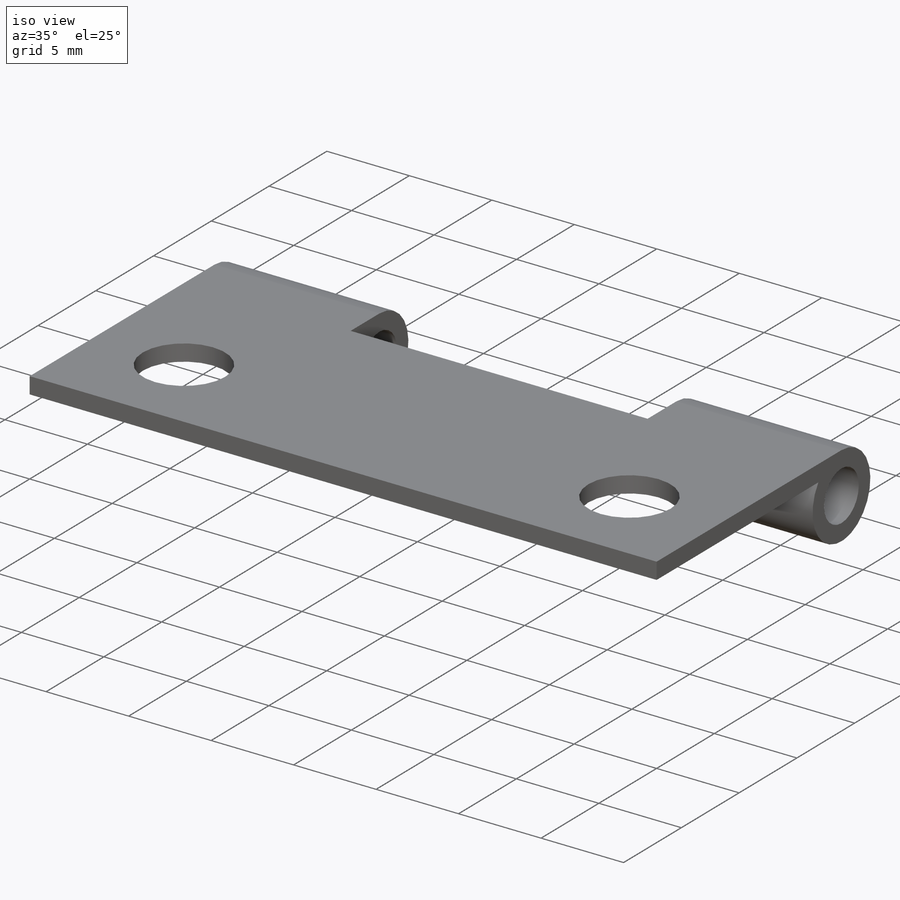
[diagram: iso view]
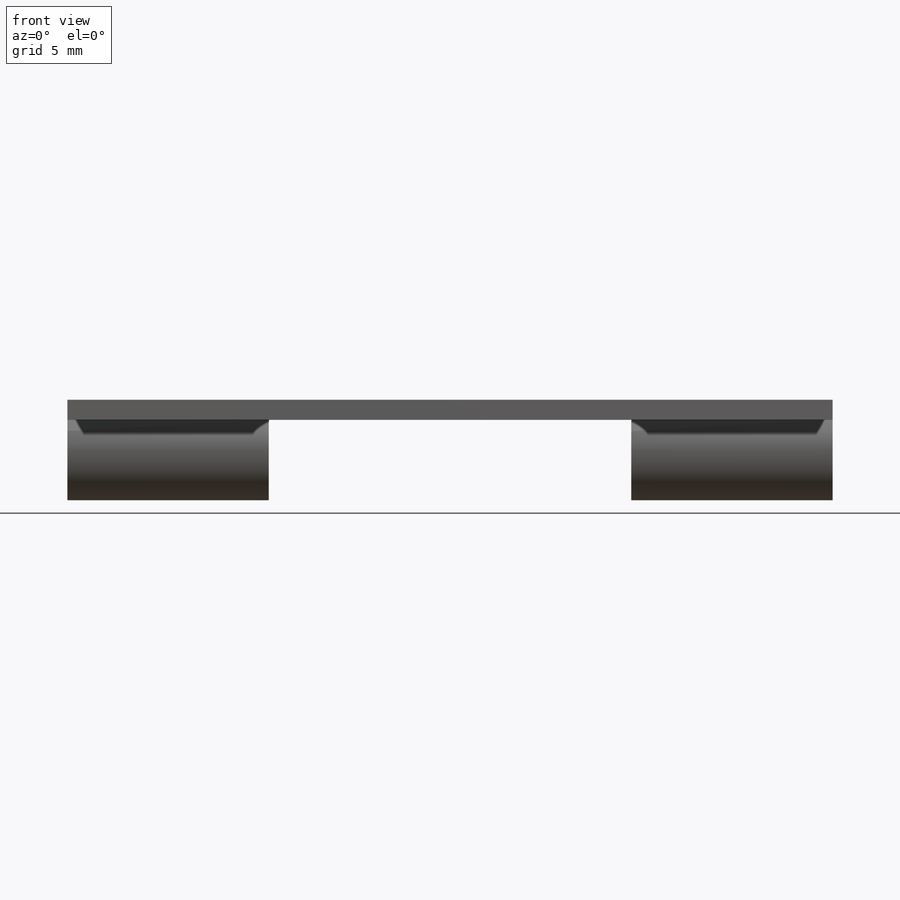
[diagram: front view]
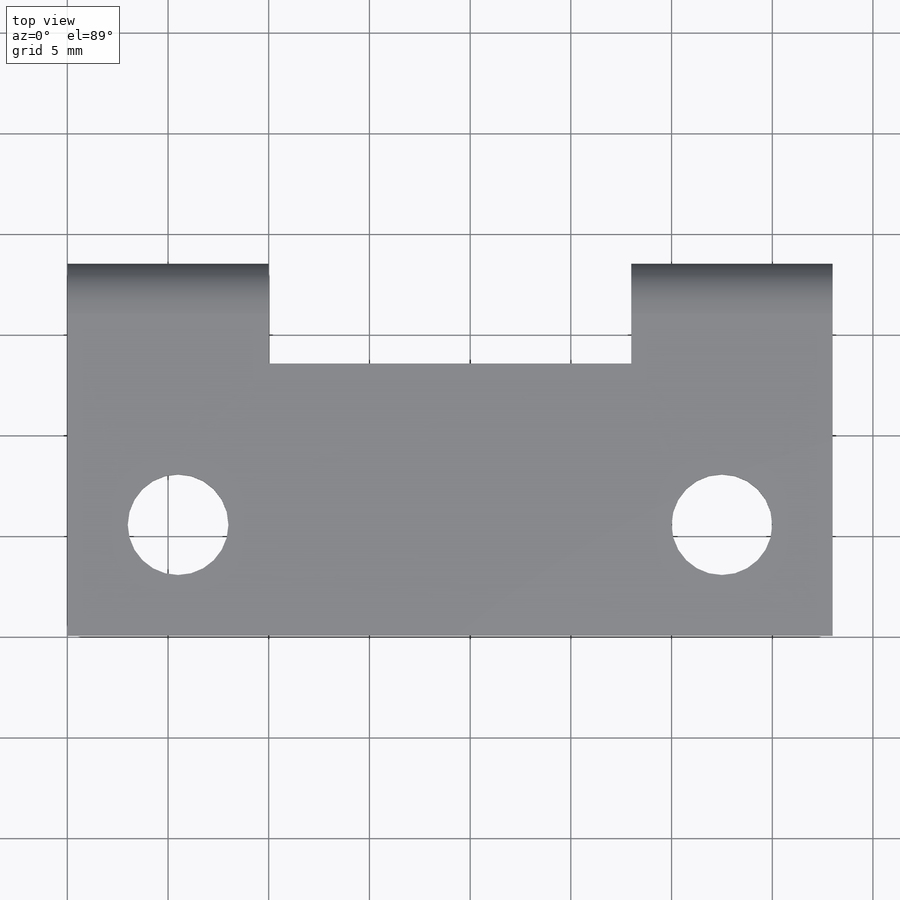
[diagram: top view]
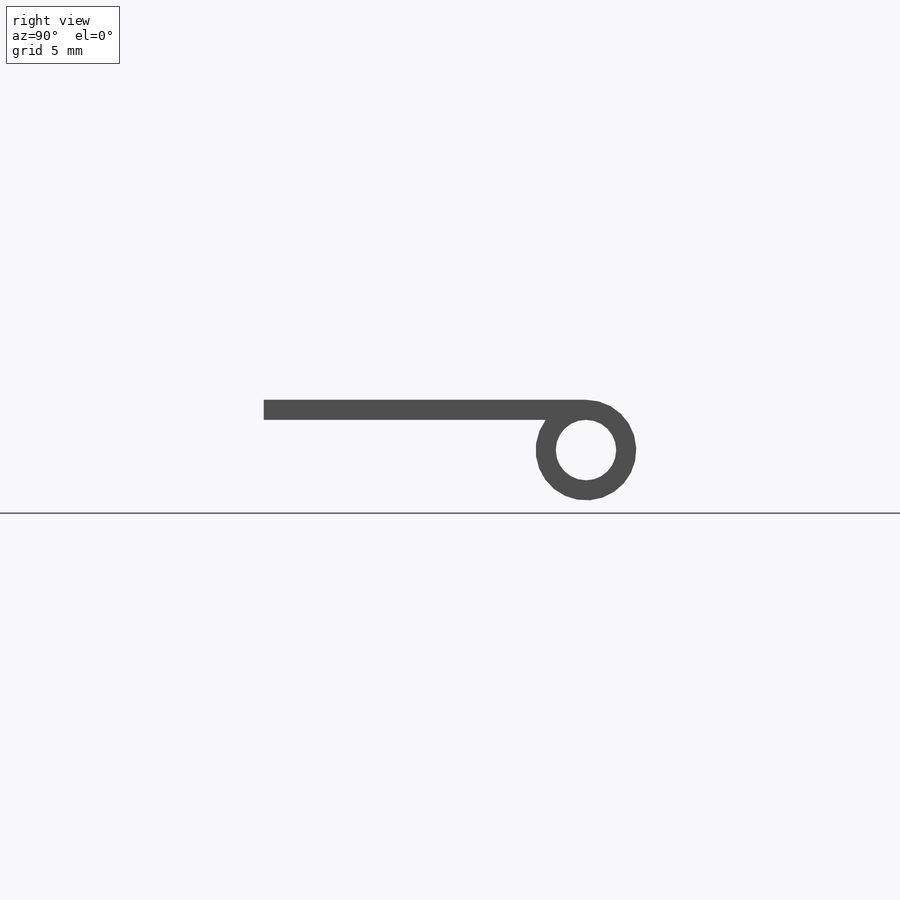
[diagram: right view]
SOLIDWORKS PART (.sldprt)
format: sldprt  version: not decoded by parser v0  size: 175,104 bytes
history: native  units: mm
features: sketch x3, cut_extrude x2, material x1, extrude x1 (+11 scaffold rows collapsed)
feature tree (18):
  scaffold x11  (default folders/planes/origin — collapsed)
  material  "Material <not specified>"
  sketch  "Sketch3"  dims[c1.D3=2.0mm c1.D4=2.0mm c2.D3=3.0mm c2.D1=1.0mm c2.D2=14.0mm c3.D1=1.0mm c3.D2=14.0mm]
  extrude  "Boss-Extrude2"  Depth=38mm
  sketch  "Sketch6"  dims[D1=2.5mm D2=5.0mm D3=10.0mm D4=10.0mm]
  cut_extrude  "Cut-Extrude1"  [1 undecoded]
  sketch  "Sketch7"  dims[D1=5.0mm D2=5.5mm D3=5.5mm]
  cut_extrude  "Cut-Extrude2"  Depth=10mm
decode coverage: 5 of 6 modeling features carry decoded parameters
note: 1 parameter value undecoded
note: suppression state not decoded; provenance and decode notes live in map.json
